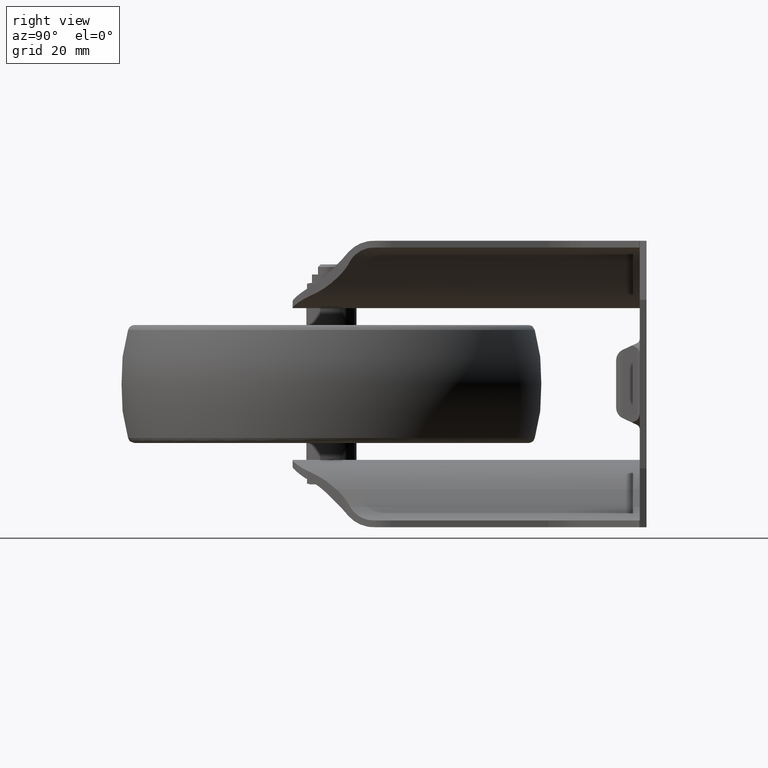
[diagram: clean part render]
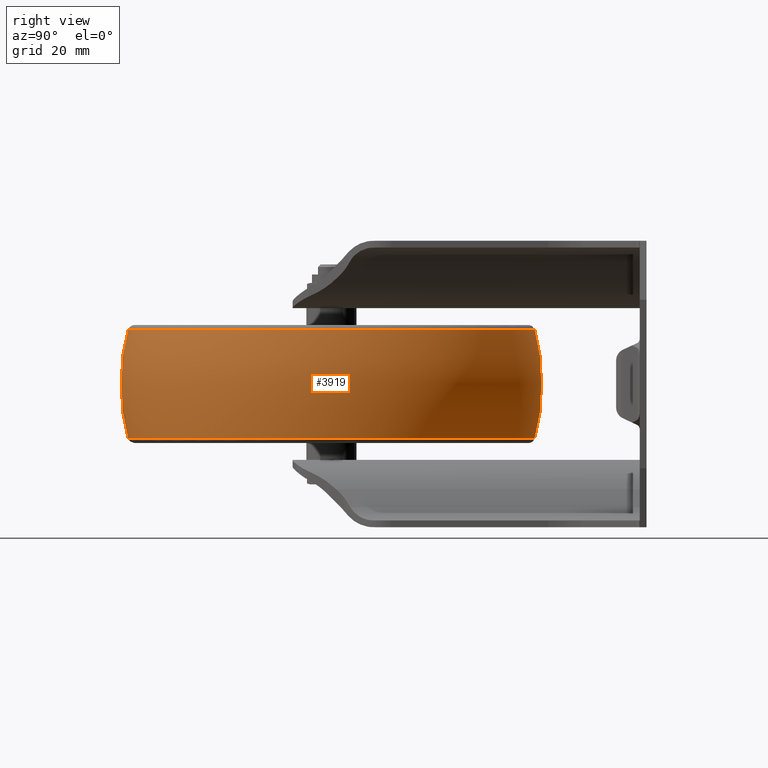
[diagram: same view with one face highlighted and labeled with its STEP entity id]
A machine part, right view. The second image highlights one B-rep face of the part: STEP entity #3919.
In plain terms, the highlighted spherical surface has radius 62.5 mm.
Its self-contained STEP definition (entity closure, byte-faithful):
#13=SPHERICAL_SURFACE('',#4382,62.4999999999997);
#1085=FACE_OUTER_BOUND('',#1330,.T.);
#1330=EDGE_LOOP('',(#3654,#3655,#3656,#3657));
#1513=CIRCLE('',#4381,60.4140145339399);
#1514=CIRCLE('',#4383,62.4999999999997);
#1515=CIRCLE('',#4384,60.4140145339399);
#1929=VERTEX_POINT('',#7110);
#1930=VERTEX_POINT('',#7114);
#2504=EDGE_CURVE('',#1929,#1929,#1513,.T.);
#2505=EDGE_CURVE('',#1929,#1930,#1514,.T.);
#2506=EDGE_CURVE('',#1930,#1930,#1515,.T.);
#3654=ORIENTED_EDGE('',*,*,#2504,.F.);
#3655=ORIENTED_EDGE('',*,*,#2505,.T.);
#3656=ORIENTED_EDGE('',*,*,#2506,.T.);
#3657=ORIENTED_EDGE('',*,*,#2505,.F.);
#3919=ADVANCED_FACE('',(#1085),#13,.T.);
#4381=AXIS2_PLACEMENT_3D('',#7112,#5527,#5528);
#4382=AXIS2_PLACEMENT_3D('',#7113,#5529,#5530);
#4383=AXIS2_PLACEMENT_3D('',#7115,#5531,#5532);
#4384=AXIS2_PLACEMENT_3D('',#7116,#5533,#5534);
#5527=DIRECTION('center_axis',(0.,0.,1.));
#5528=DIRECTION('ref_axis',(1.,0.,0.));
#5529=DIRECTION('center_axis',(6.12323399573676E-17,0.,1.));
#5530=DIRECTION('ref_axis',(1.,0.,0.));
#5531=DIRECTION('center_axis',(1.22464679914735E-16,-1.,0.));
#5532=DIRECTION('ref_axis',(-1.,-1.22464679914735E-16,0.));
#5533=DIRECTION('center_axis',(0.,0.,1.));
#5534=DIRECTION('ref_axis',(1.,0.,0.));
#7110=CARTESIAN_POINT('',(-60.4140145339399,-7.39858295226312E-15,16.0123966942149));
#7112=CARTESIAN_POINT('Origin',(0.,0.,16.0123966942149));
#7113=CARTESIAN_POINT('Origin',(2.98372437868011E-13,0.,-1.38777878078145E-14));
#7114=CARTESIAN_POINT('',(-60.4140145339399,-7.39858295226316E-15,-16.0123966942149));
#7115=CARTESIAN_POINT('Origin',(2.98372437868011E-13,0.,-1.38777878078145E-14));
#7116=CARTESIAN_POINT('Origin',(0.,0.,-16.0123966942149));